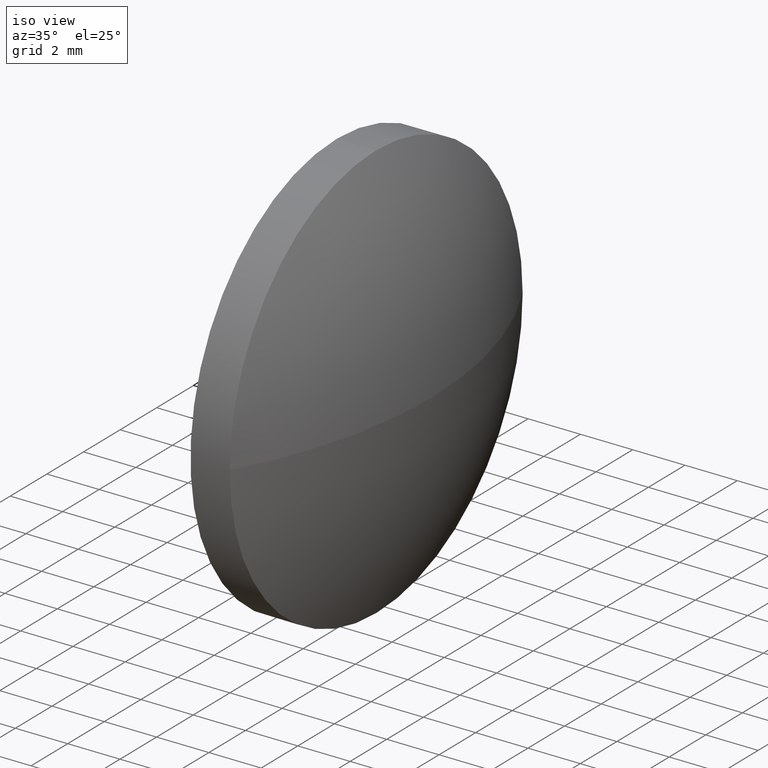
[diagram: clean part render]
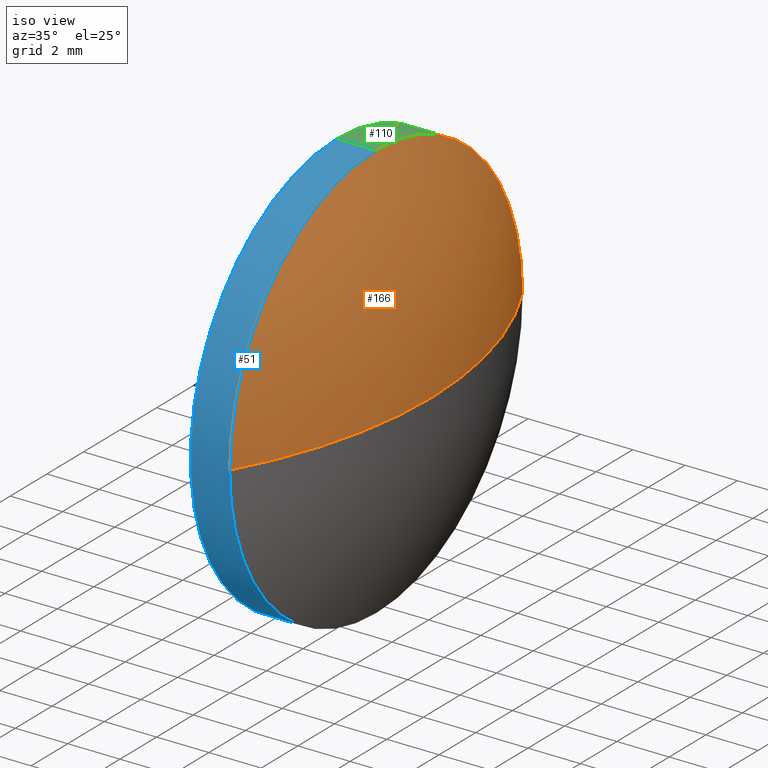
[diagram: same view with three faces highlighted in distinct colors, each labeled with its STEP entity id]
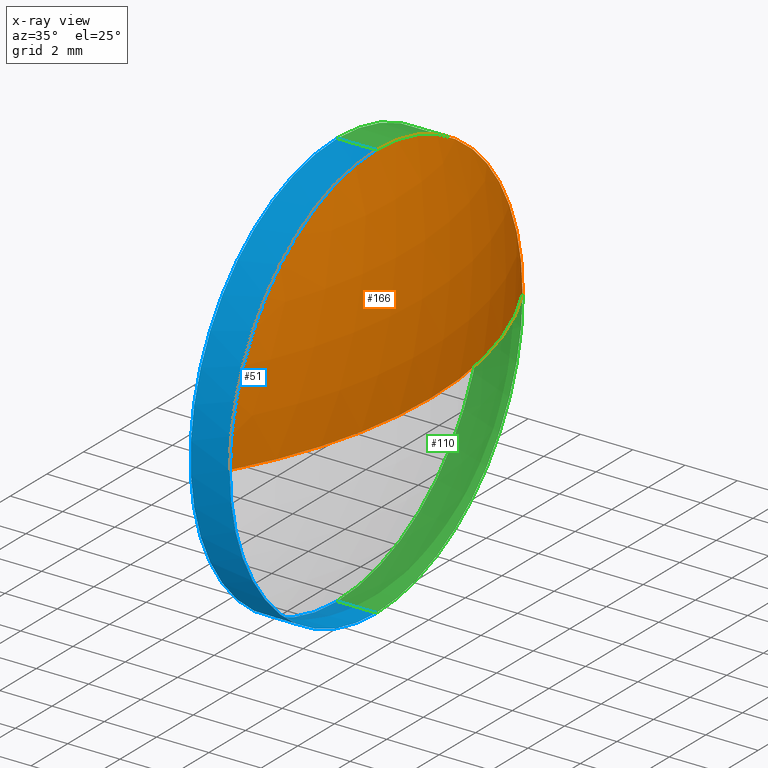
[diagram: x-ray of the same camera — body ghosted, the three highlighted faces saturated]
A machine part, iso view with three faces highlighted in distinct colors.
The next image is the same camera in x-ray (body ghosted, the three faces saturated) — at least one of them is partly hidden behind the body in this view.
Their STEP definitions:

[orange] entity #166 — the highlighted spherical surface has radius 16.2881 mm.
#1 = DIRECTION ( 'NONE',  ( 0.0000000000000000000, 0.0000000000000000000, -1.000000000000000000 ) ) ;
#2 = AXIS2_PLACEMENT_3D ( 'NONE', #87, #1, #45 ) ;
#5 = VERTEX_POINT ( 'NONE', #9 ) ;
#8 = CARTESIAN_POINT ( 'NONE',  ( 396.8896529179952500, 34.86392856957573400, 0.0000000000000000000 ) ) ;
#9 = CARTESIAN_POINT ( 'NONE',  ( 394.7896529179952800, 42.86392856957571200, 9.797174393178796100E-016 ) ) ;
#18 = FACE_OUTER_BOUND ( 'NONE', #114, .T. ) ;
#34 = AXIS2_PLACEMENT_3D ( 'NONE', #71, #131, #154 ) ;
#43 = ORIENTED_EDGE ( 'NONE', *, *, #151, .F. ) ;
#45 = DIRECTION ( 'NONE',  ( -1.000000000000000000, 0.0000000000000000000, 0.0000000000000000000 ) ) ;
#57 = SPHERICAL_SURFACE ( 'NONE', #76, 16.28809523809521300 ) ;
#58 = DIRECTION ( 'NONE',  ( 0.0000000000000000000, 0.0000000000000000000, 1.000000000000000000 ) ) ;
#59 = DIRECTION ( 'NONE',  ( 0.0000000000000000000, 0.0000000000000000000, 1.000000000000000000 ) ) ;
#62 = AXIS2_PLACEMENT_3D ( 'NONE', #102, #145, #186 ) ;
#66 = CIRCLE ( 'NONE', #168, 8.000000000000000000 ) ;
#71 = CARTESIAN_POINT ( 'NONE',  ( 394.7896529179952800, 34.86392856957570500, 0.0000000000000000000 ) ) ;
#76 = AXIS2_PLACEMENT_3D ( 'NONE', #129, #58, #153 ) ;
#77 = ORIENTED_EDGE ( 'NONE', *, *, #106, .F. ) ;
#82 = CARTESIAN_POINT ( 'NONE',  ( 394.7896529179952800, 26.86392856957573400, 0.0000000000000000000 ) ) ;
#87 = CARTESIAN_POINT ( 'NONE',  ( 380.6015576799000500, 34.86392856957573400, 0.0000000000000000000 ) ) ;
#88 = VERTEX_POINT ( 'NONE', #140 ) ;
#90 = EDGE_CURVE ( 'NONE', #88, #5, #66, .T. ) ;
#99 = VERTEX_POINT ( 'NONE', #82 ) ;
#102 = CARTESIAN_POINT ( 'NONE',  ( 380.6015576799000500, 34.86392856957573400, 0.0000000000000000000 ) ) ;
#106 = EDGE_CURVE ( 'NONE', #107, #99, #170, .T. ) ;
#107 = VERTEX_POINT ( 'NONE', #8 ) ;
#114 = EDGE_LOOP ( 'NONE', ( #77, #165, #127, #43 ) ) ;
#116 = CARTESIAN_POINT ( 'NONE',  ( 394.7896529179952800, 34.86392856957570500, 0.0000000000000000000 ) ) ;
#127 = ORIENTED_EDGE ( 'NONE', *, *, #90, .F. ) ;
#129 = CARTESIAN_POINT ( 'NONE',  ( 380.6015576799000500, 34.86392856957573400, 0.0000000000000000000 ) ) ;
#131 = DIRECTION ( 'NONE',  ( -1.000000000000000000, -0.0000000000000000000, -0.0000000000000000000 ) ) ;
#133 = CIRCLE ( 'NONE', #34, 8.000000000000000000 ) ;
#136 = CIRCLE ( 'NONE', #62, 16.28809523809521300 ) ;
#140 = CARTESIAN_POINT ( 'NONE',  ( 394.7896529179952800, 34.86392856957570500, 8.000000000000000000 ) ) ;
#145 = DIRECTION ( 'NONE',  ( 0.0000000000000000000, -1.224646799147353200E-016, 1.000000000000000000 ) ) ;
#151 = EDGE_CURVE ( 'NONE', #99, #88, #133, .T. ) ;
#153 = DIRECTION ( 'NONE',  ( 0.0000000000000000000, -1.000000000000000000, 0.0000000000000000000 ) ) ;
#154 = DIRECTION ( 'NONE',  ( 0.0000000000000000000, 0.0000000000000000000, 1.000000000000000000 ) ) ;
#161 = EDGE_CURVE ( 'NONE', #107, #5, #136, .T. ) ;
#165 = ORIENTED_EDGE ( 'NONE', *, *, #161, .T. ) ;
#166 = ADVANCED_FACE ( 'NONE', ( #18 ), #57, .T. ) ;
#168 = AXIS2_PLACEMENT_3D ( 'NONE', #116, #172, #59 ) ;
#170 = CIRCLE ( 'NONE', #2, 16.28809523809521300 ) ;
#172 = DIRECTION ( 'NONE',  ( -1.000000000000000000, -0.0000000000000000000, -0.0000000000000000000 ) ) ;
#186 = DIRECTION ( 'NONE',  ( 0.0000000000000000000, -1.000000000000000000, -1.224646799147353000E-016 ) ) ;

[blue] entity #51 — the highlighted cylindrical surface (partial cylindrical patch) has radius 8 mm, axis along (-1, -0, -0).
#3 = ORIENTED_EDGE ( 'NONE', *, *, #157, .T. ) ;
#12 = CARTESIAN_POINT ( 'NONE',  ( 393.2896529179952800, 34.86392856957570500, 8.000000000000000000 ) ) ;
#14 = CARTESIAN_POINT ( 'NONE',  ( 391.3668362131495500, 34.86392856957570500, -8.000000000000000000 ) ) ;
#15 = CARTESIAN_POINT ( 'NONE',  ( 393.2896529179952800, 34.86392856957570500, 0.0000000000000000000 ) ) ;
#27 = CARTESIAN_POINT ( 'NONE',  ( 391.3668362131495500, 34.86392856957570500, 0.0000000000000000000 ) ) ;
#30 = CARTESIAN_POINT ( 'NONE',  ( 394.7896529179952800, 34.86392856957570500, 0.0000000000000000000 ) ) ;
#34 = AXIS2_PLACEMENT_3D ( 'NONE', #71, #131, #154 ) ;
#46 = VERTEX_POINT ( 'NONE', #70 ) ;
#51 = ADVANCED_FACE ( 'NONE', ( #86 ), #159, .T. ) ;
#52 = EDGE_CURVE ( 'NONE', #46, #61, #55, .T. ) ;
#54 = DIRECTION ( 'NONE',  ( -1.000000000000000000, -0.0000000000000000000, -0.0000000000000000000 ) ) ;
#55 = CIRCLE ( 'NONE', #175, 8.000000000000000000 ) ;
#56 = VECTOR ( 'NONE', #117, 1000.000000000000000 ) ;
#61 = VERTEX_POINT ( 'NONE', #12 ) ;
#65 = AXIS2_PLACEMENT_3D ( 'NONE', #27, #100, #128 ) ;
#70 = CARTESIAN_POINT ( 'NONE',  ( 393.2896529179952800, 34.86392856957570500, -8.000000000000000000 ) ) ;
#71 = CARTESIAN_POINT ( 'NONE',  ( 394.7896529179952800, 34.86392856957570500, 0.0000000000000000000 ) ) ;
#74 = EDGE_CURVE ( 'NONE', #119, #46, #141, .T. ) ;
#75 = ORIENTED_EDGE ( 'NONE', *, *, #52, .F. ) ;
#82 = CARTESIAN_POINT ( 'NONE',  ( 394.7896529179952800, 26.86392856957573400, 0.0000000000000000000 ) ) ;
#86 = FACE_OUTER_BOUND ( 'NONE', #144, .T. ) ;
#88 = VERTEX_POINT ( 'NONE', #140 ) ;
#91 = ORIENTED_EDGE ( 'NONE', *, *, #151, .T. ) ;
#94 = LINE ( 'NONE', #185, #56 ) ;
#99 = VERTEX_POINT ( 'NONE', #82 ) ;
#100 = DIRECTION ( 'NONE',  ( -1.000000000000000000, -0.0000000000000000000, -0.0000000000000000000 ) ) ;
#103 = CARTESIAN_POINT ( 'NONE',  ( 394.7896529179952800, 34.86392856957570500, -8.000000000000000000 ) ) ;
#105 = VECTOR ( 'NONE', #54, 1000.000000000000000 ) ;
#115 = EDGE_CURVE ( 'NONE', #119, #99, #162, .T. ) ;
#117 = DIRECTION ( 'NONE',  ( -1.000000000000000000, -0.0000000000000000000, -0.0000000000000000000 ) ) ;
#118 = DIRECTION ( 'NONE',  ( -1.000000000000000000, -0.0000000000000000000, -0.0000000000000000000 ) ) ;
#119 = VERTEX_POINT ( 'NONE', #103 ) ;
#121 = ORIENTED_EDGE ( 'NONE', *, *, #74, .F. ) ;
#128 = DIRECTION ( 'NONE',  ( 0.0000000000000000000, 0.0000000000000000000, 1.000000000000000000 ) ) ;
#131 = DIRECTION ( 'NONE',  ( -1.000000000000000000, -0.0000000000000000000, -0.0000000000000000000 ) ) ;
#132 = ORIENTED_EDGE ( 'NONE', *, *, #115, .T. ) ;
#133 = CIRCLE ( 'NONE', #34, 8.000000000000000000 ) ;
#139 = DIRECTION ( 'NONE',  ( 0.0000000000000000000, 0.0000000000000000000, 1.000000000000000000 ) ) ;
#140 = CARTESIAN_POINT ( 'NONE',  ( 394.7896529179952800, 34.86392856957570500, 8.000000000000000000 ) ) ;
#141 = LINE ( 'NONE', #14, #105 ) ;
#144 = EDGE_LOOP ( 'NONE', ( #121, #132, #91, #3, #75 ) ) ;
#151 = EDGE_CURVE ( 'NONE', #99, #88, #133, .T. ) ;
#154 = DIRECTION ( 'NONE',  ( 0.0000000000000000000, 0.0000000000000000000, 1.000000000000000000 ) ) ;
#157 = EDGE_CURVE ( 'NONE', #88, #61, #94, .T. ) ;
#159 = CYLINDRICAL_SURFACE ( 'NONE', #65, 8.000000000000000000 ) ;
#162 = CIRCLE ( 'NONE', #173, 8.000000000000000000 ) ;
#167 = DIRECTION ( 'NONE',  ( -1.000000000000000000, -0.0000000000000000000, -0.0000000000000000000 ) ) ;
#173 = AXIS2_PLACEMENT_3D ( 'NONE', #30, #118, #174 ) ;
#174 = DIRECTION ( 'NONE',  ( 0.0000000000000000000, 0.0000000000000000000, 1.000000000000000000 ) ) ;
#175 = AXIS2_PLACEMENT_3D ( 'NONE', #15, #167, #139 ) ;
#185 = CARTESIAN_POINT ( 'NONE',  ( 391.3668362131495500, 34.86392856957570500, 8.000000000000000000 ) ) ;

[green] entity #110 — the highlighted cylindrical surface (partial cylindrical patch) has radius 8 mm, axis along (-1, -0, -0).
#5 = VERTEX_POINT ( 'NONE', #9 ) ;
#9 = CARTESIAN_POINT ( 'NONE',  ( 394.7896529179952800, 42.86392856957571200, 9.797174393178796100E-016 ) ) ;
#12 = CARTESIAN_POINT ( 'NONE',  ( 393.2896529179952800, 34.86392856957570500, 8.000000000000000000 ) ) ;
#13 = CIRCLE ( 'NONE', #155, 8.000000000000000000 ) ;
#14 = CARTESIAN_POINT ( 'NONE',  ( 391.3668362131495500, 34.86392856957570500, -8.000000000000000000 ) ) ;
#19 = ORIENTED_EDGE ( 'NONE', *, *, #157, .F. ) ;
#20 = EDGE_CURVE ( 'NONE', #61, #46, #21, .T. ) ;
#21 = CIRCLE ( 'NONE', #123, 8.000000000000000000 ) ;
#22 = CYLINDRICAL_SURFACE ( 'NONE', #176, 8.000000000000000000 ) ;
#28 = FACE_OUTER_BOUND ( 'NONE', #53, .T. ) ;
#33 = CARTESIAN_POINT ( 'NONE',  ( 391.3668362131495500, 34.86392856957570500, 0.0000000000000000000 ) ) ;
#44 = EDGE_CURVE ( 'NONE', #5, #119, #13, .T. ) ;
#46 = VERTEX_POINT ( 'NONE', #70 ) ;
#53 = EDGE_LOOP ( 'NONE', ( #149, #158, #150, #19, #92 ) ) ;
#54 = DIRECTION ( 'NONE',  ( -1.000000000000000000, -0.0000000000000000000, -0.0000000000000000000 ) ) ;
#56 = VECTOR ( 'NONE', #117, 1000.000000000000000 ) ;
#59 = DIRECTION ( 'NONE',  ( 0.0000000000000000000, 0.0000000000000000000, 1.000000000000000000 ) ) ;
#60 = DIRECTION ( 'NONE',  ( -1.000000000000000000, -0.0000000000000000000, -0.0000000000000000000 ) ) ;
#61 = VERTEX_POINT ( 'NONE', #12 ) ;
#66 = CIRCLE ( 'NONE', #168, 8.000000000000000000 ) ;
#70 = CARTESIAN_POINT ( 'NONE',  ( 393.2896529179952800, 34.86392856957570500, -8.000000000000000000 ) ) ;
#74 = EDGE_CURVE ( 'NONE', #119, #46, #141, .T. ) ;
#84 = DIRECTION ( 'NONE',  ( -1.000000000000000000, -0.0000000000000000000, -0.0000000000000000000 ) ) ;
#85 = DIRECTION ( 'NONE',  ( 0.0000000000000000000, 0.0000000000000000000, 1.000000000000000000 ) ) ;
#88 = VERTEX_POINT ( 'NONE', #140 ) ;
#90 = EDGE_CURVE ( 'NONE', #88, #5, #66, .T. ) ;
#92 = ORIENTED_EDGE ( 'NONE', *, *, #90, .T. ) ;
#94 = LINE ( 'NONE', #185, #56 ) ;
#103 = CARTESIAN_POINT ( 'NONE',  ( 394.7896529179952800, 34.86392856957570500, -8.000000000000000000 ) ) ;
#105 = VECTOR ( 'NONE', #54, 1000.000000000000000 ) ;
#110 = ADVANCED_FACE ( 'NONE', ( #28 ), #22, .T. ) ;
#116 = CARTESIAN_POINT ( 'NONE',  ( 394.7896529179952800, 34.86392856957570500, 0.0000000000000000000 ) ) ;
#117 = DIRECTION ( 'NONE',  ( -1.000000000000000000, -0.0000000000000000000, -0.0000000000000000000 ) ) ;
#119 = VERTEX_POINT ( 'NONE', #103 ) ;
#123 = AXIS2_PLACEMENT_3D ( 'NONE', #125, #84, #182 ) ;
#125 = CARTESIAN_POINT ( 'NONE',  ( 393.2896529179952800, 34.86392856957570500, 0.0000000000000000000 ) ) ;
#140 = CARTESIAN_POINT ( 'NONE',  ( 394.7896529179952800, 34.86392856957570500, 8.000000000000000000 ) ) ;
#141 = LINE ( 'NONE', #14, #105 ) ;
#143 = DIRECTION ( 'NONE',  ( 0.0000000000000000000, 0.0000000000000000000, 1.000000000000000000 ) ) ;
#149 = ORIENTED_EDGE ( 'NONE', *, *, #44, .T. ) ;
#150 = ORIENTED_EDGE ( 'NONE', *, *, #20, .F. ) ;
#155 = AXIS2_PLACEMENT_3D ( 'NONE', #181, #171, #85 ) ;
#157 = EDGE_CURVE ( 'NONE', #88, #61, #94, .T. ) ;
#158 = ORIENTED_EDGE ( 'NONE', *, *, #74, .T. ) ;
#168 = AXIS2_PLACEMENT_3D ( 'NONE', #116, #172, #59 ) ;
#171 = DIRECTION ( 'NONE',  ( -1.000000000000000000, -0.0000000000000000000, -0.0000000000000000000 ) ) ;
#172 = DIRECTION ( 'NONE',  ( -1.000000000000000000, -0.0000000000000000000, -0.0000000000000000000 ) ) ;
#176 = AXIS2_PLACEMENT_3D ( 'NONE', #33, #60, #143 ) ;
#181 = CARTESIAN_POINT ( 'NONE',  ( 394.7896529179952800, 34.86392856957570500, 0.0000000000000000000 ) ) ;
#182 = DIRECTION ( 'NONE',  ( 0.0000000000000000000, 0.0000000000000000000, 1.000000000000000000 ) ) ;
#185 = CARTESIAN_POINT ( 'NONE',  ( 391.3668362131495500, 34.86392856957570500, 8.000000000000000000 ) ) ;